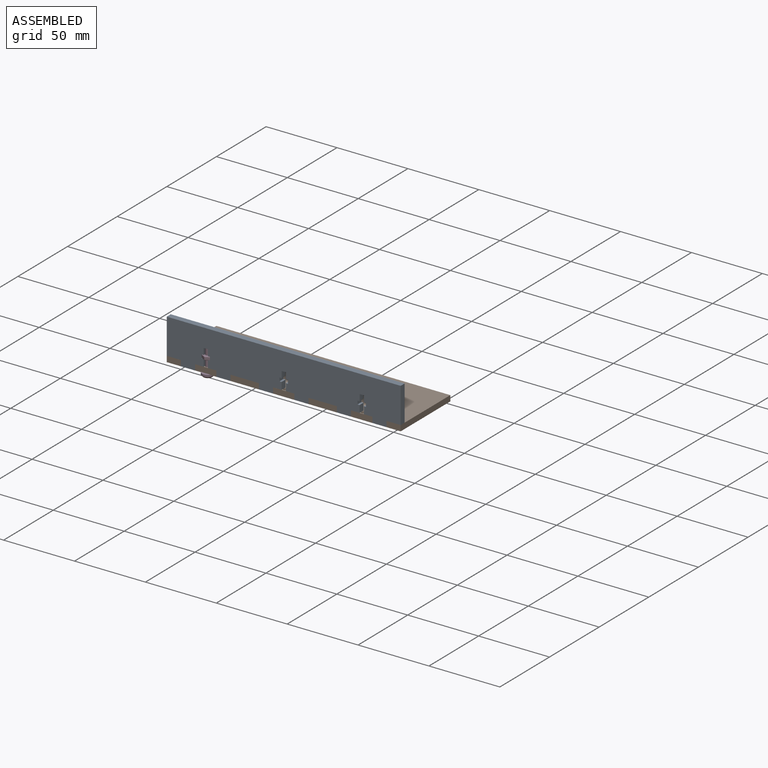
[diagram: assembled view]
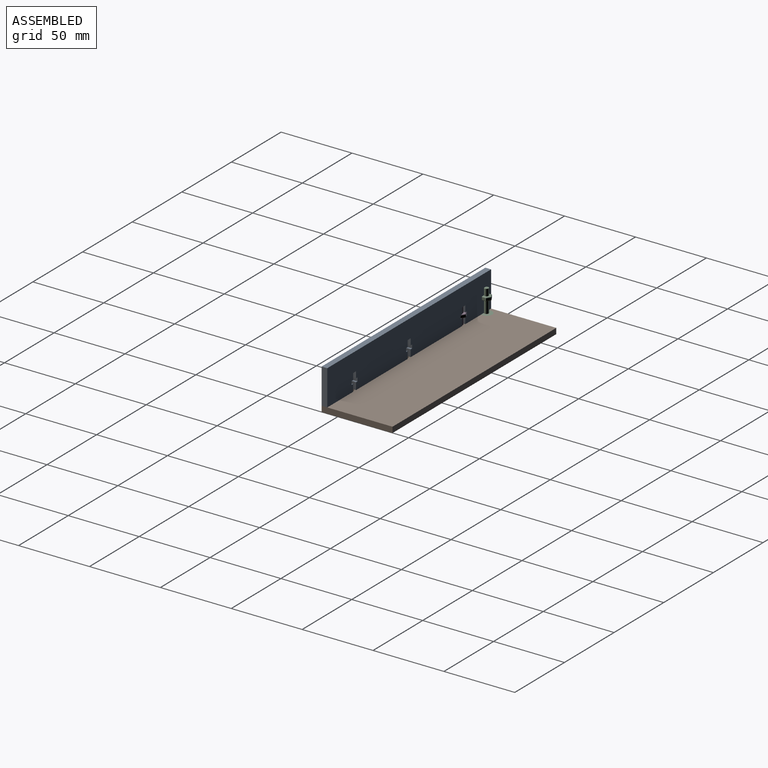
[diagram: assembled view, second angle]
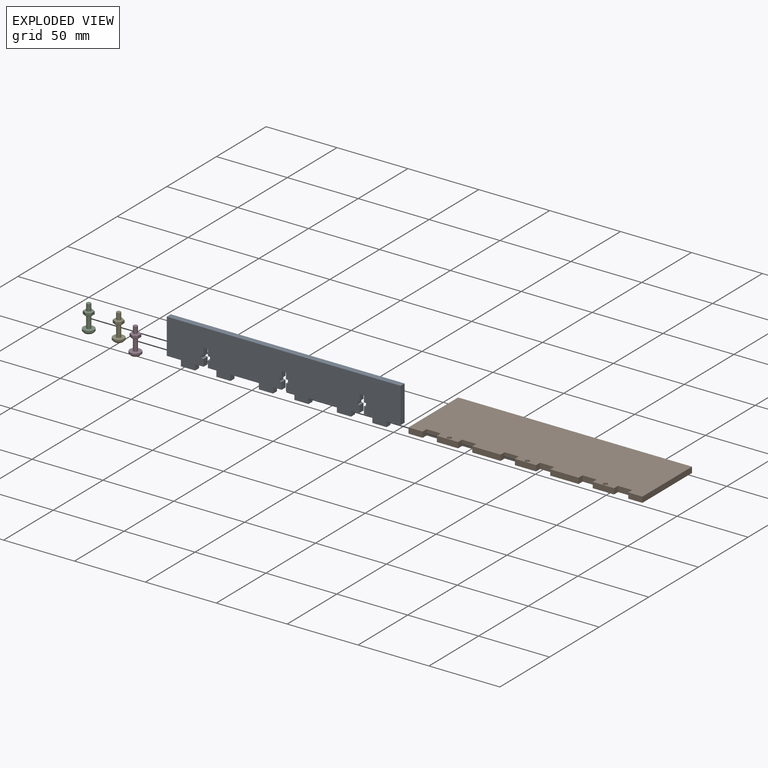
[diagram: exploded view]
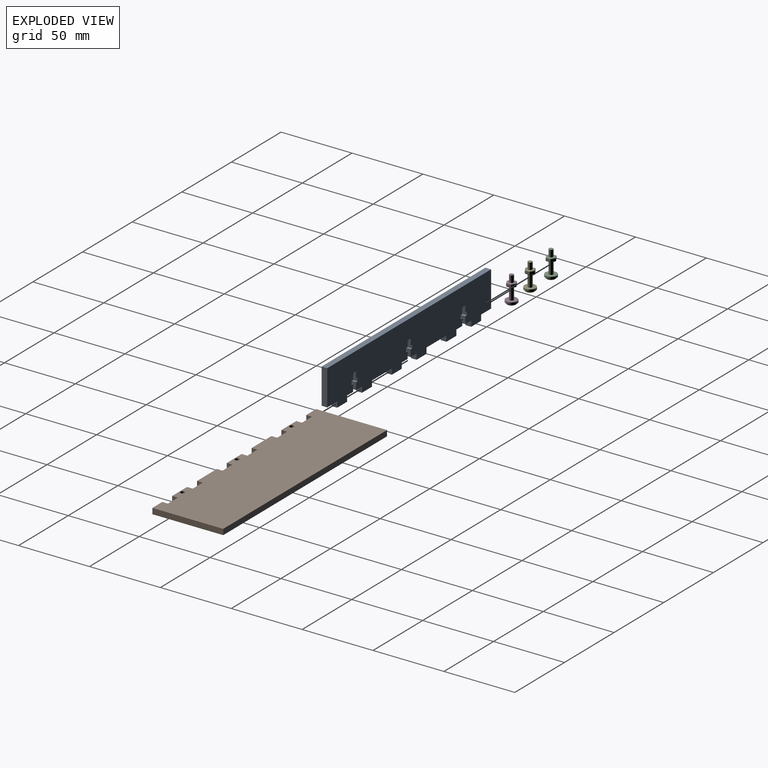
[diagram: exploded view, second angle]
ASSEMBLY  parts=5 mates=3
PART A: 70 faces, bbox 165x4x29 mm
  f0: plane 4.5x4mm, normal (1,0,0), area 18mm2, adj f1,f67,f68,f69
  f1: plane 4x3mm, normal (0,0,-1), area 12mm2, adj f0,f2,f68,f69
  f2: plane 4.5x4mm, normal (-1,0,0), area 18mm2, adj f1,f3,f68,f69
  f3: plane 4x1.5mm, normal (0,0,-1), area 6mm2, adj f2,f4,f68,f69
  f4: plane 4x2.5mm, normal (-1,0,0), area 10mm2, adj f3,f5,f68,f69
  f5: plane 4x1.5mm, normal (0,0,1), area 6mm2, adj f4,f6,f68,f69
  f6: plane 5x4mm, normal (-1,0,0), area 20mm2, adj f5,f7,f68,f69
  f7: plane 6x4mm, normal (0,0,-1), area 24mm2, adj f6,f8,f68,f69
  f8: plane 4x4mm, normal (-1,0,0), area 16mm2, adj f7,f9,f68,f69
  f9: plane 10x4mm, normal (0,0,-1), area 40mm2, adj f8,f10,f68,f69
  f10: plane 4x4mm, normal (1,0,0), area 16mm2, adj f9,f11,f68,f69
  f11: plane 20x4mm, normal (0,0,-1), area 80mm2, adj f10,f12,f68,f69
  f12: plane 4x4mm, normal (-1,0,0), area 16mm2, adj f11,f13,f68,f69
  f13: plane 10x4mm, normal (0,0,-1), area 40mm2, adj f12,f14,f68,f69
  f14: plane 4x4mm, normal (1,0,0), area 16mm2, adj f13,f15,f68,f69
  f15: plane 6x4mm, normal (0,0,-1), area 24mm2, adj f14,f16,f68,f69
  f16: plane 5x4mm, normal (1,0,0), area 20mm2, adj f15,f17,f68,f69
  f17: plane 4x1.5mm, normal (0,0,1), area 6mm2, adj f16,f18,f68,f69
  f18: plane 4x2.5mm, normal (1,0,0), area 10mm2, adj f17,f19,f68,f69
  f19: plane 4x1.5mm, normal (0,0,-1), area 6mm2, adj f18,f20,f68,f69
  f20: plane 4.5x4mm, normal (1,0,0), area 18mm2, adj f19,f21,f68,f69
  f21: plane 4x3mm, normal (0,0,-1), area 12mm2, adj f20,f22,f68,f69
  f22: plane 4.5x4mm, normal (-1,0,0), area 18mm2, adj f21,f23,f68,f69
  f23: plane 4x1.5mm, normal (0,0,-1), area 6mm2, adj f22,f24,f68,f69
  f24: plane 4x2.5mm, normal (-1,0,0), area 10mm2, adj f23,f25,f68,f69
  f25: plane 4x1.5mm, normal (0,0,1), area 6mm2, adj f24,f26,f68,f69
  f26: plane 5x4mm, normal (-1,0,0), area 20mm2, adj f25,f27,f68,f69
  f27: plane 6x4mm, normal (0,0,-1), area 24mm2, adj f26,f28,f68,f69
  f28: plane 4x4mm, normal (-1,0,0), area 16mm2, adj f27,f29,f68,f69
  f29: plane 10x4mm, normal (0,0,-1), area 40mm2, adj f28,f30,f68,f69
  f30: plane 4x4mm, normal (1,0,0), area 16mm2, adj f29,f31,f68,f69
  f31: plane 10x4mm, normal (0,0,-1), area 40mm2, adj f30,f32,f68,f69
  f32: plane 25x4mm, normal (1,0,0), area 100mm2, adj f31,f33,f68,f69
  f33: plane 165x4mm, normal (0,0,1), area 660mm2, adj f32,f34,f68,f69
  f34: plane 25x4mm, normal (-1,0,0), area 100mm2, adj f33,f35,f68,f69
  f35: plane 10x4mm, normal (0,0,-1), area 40mm2, adj f34,f36,f68,f69
  f36: plane 4x4mm, normal (-1,0,0), area 16mm2, adj f35,f37,f68,f69
  f37: plane 10x4mm, normal (0,0,-1), area 40mm2, adj f36,f38,f68,f69
  f38: plane 4x4mm, normal (1,0,0), area 16mm2, adj f37,f39,f68,f69
  f39: plane 6x4mm, normal (0,0,-1), area 24mm2, adj f38,f40,f68,f69
  f40: plane 5x4mm, normal (1,0,0), area 20mm2, adj f39,f41,f68,f69
  f41: plane 4x1.25mm, normal (0,0,1), area 5mm2, adj f40,f42,f68,f69
  f42: cylinder r=0.25mm len=4mm, axis (0,1,0), area 1.6mm2, adj f41,f43,f68,f69
  f43: plane 4x2mm, normal (1,0,0), area 8mm2, adj f42,f44,f68,f69
  f44: cylinder r=0.25mm len=4mm, axis (0,1,0), area 1.6mm2, adj f43,f45,f68,f69
  f45: plane 4x1.25mm, normal (0,0,-1), area 5mm2, adj f44,f46,f68,f69
  f46: plane 4.5x4mm, normal (1,0,0), area 18mm2, adj f45,f47,f68,f69
  f47: plane 4x3mm, normal (0,0,-1), area 12mm2, adj f46,f48,f68,f69
  f48: plane 4.5x4mm, normal (-1,0,0), area 18mm2, adj f47,f49,f68,f69
  f49: plane 4x1.25mm, normal (0,0,-1), area 5mm2, adj f48,f50,f68,f69
  f50: cylinder r=0.25mm len=4mm, axis (0,1,0), area 1.6mm2, adj f49,f51,f68,f69
  f51: plane 4x2mm, normal (-1,0,0), area 8mm2, adj f50,f52,f68,f69
  f52: cylinder r=0.25mm len=4mm, axis (0,1,0), area 1.6mm2, adj f51,f53,f68,f69
  f53: plane 4x1.25mm, normal (0,0,1), area 5mm2, adj f52,f54,f68,f69
  f54: plane 5x4mm, normal (-1,0,0), area 20mm2, adj f53,f55,f68,f69
  f55: plane 6x4mm, normal (0,0,-1), area 24mm2, adj f54,f56,f68,f69
  f56: plane 4x4mm, normal (-1,0,0), area 16mm2, adj f55,f57,f68,f69
  f57: plane 10x4mm, normal (0,0,-1), area 40mm2, adj f56,f58,f68,f69
  f58: plane 4x4mm, normal (1,0,0), area 16mm2, adj f57,f59,f68,f69
  f59: plane 20x4mm, normal (0,0,-1), area 80mm2, adj f58,f60,f68,f69
  f60: plane 4x4mm, normal (-1,0,0), area 16mm2, adj f59,f61,f68,f69
  f61: plane 10x4mm, normal (0,0,-1), area 40mm2, adj f60,f62,f68,f69
  f62: plane 4x4mm, normal (1,0,0), area 16mm2, adj f61,f63,f68,f69
  f63: plane 6x4mm, normal (0,0,-1), area 24mm2, adj f62,f64,f68,f69
  f64: plane 5x4mm, normal (1,0,0), area 20mm2, adj f63,f65,f68,f69
  f65: plane 4x1.5mm, normal (0,0,1), area 6mm2, adj f64,f66,f68,f69
  f66: plane 4x2.5mm, normal (1,0,0), area 10mm2, adj f65,f67,f68,f69
  f67: plane 4x1.5mm, normal (0,0,-1), area 6mm2, adj f0,f66,f68,f69
  f68: plane 165x29mm, normal (0,-1,0), area 4234.6mm2, adj f0,f1,f2,f3,f4,f5,f6,f7
  f69: plane 165x29mm, normal (0,1,0), area 4234.6mm2, adj f0,f1,f2,f3,f4,f5,f6,f7
PART B: 33 faces, bbox 165x50x4 mm
  f0: plane 20x4mm, normal (0,-1,0), area 80mm2, adj f6,f14,f25,f29
  f1: plane 15x4mm, normal (0,-1,0), area 60mm2, adj f6,f14,f28,f31
  f2: plane 10x4mm, normal (0,-1,0), area 40mm2, adj f6,f12,f14,f32
  f3: plane 15x4mm, normal (0,-1,0), area 60mm2, adj f6,f14,f16,f20
  f4: plane 20x4mm, normal (0,-1,0), area 80mm2, adj f6,f14,f19,f23
  f5: plane 15x4mm, normal (0,-1,0), area 60mm2, adj f6,f14,f22,f26
  f6: plane 165x50mm, normal (0,0,-1), area 7988.8mm2, adj f0,f1,f2,f3,f4,f5,f7,f8
  f7: plane 10x4mm, normal (0,-1,0), area 40mm2, adj f6,f8,f14,f17
  f8: plane 50x4mm, normal (-1,0,0), area 200mm2, adj f6,f7,f9,f14
  f9: plane 165x4mm, normal (0,1,0), area 660mm2, adj f6,f8,f12,f14
  f10: cylinder r=1.5mm len=4mm, axis (0,0,1), area 37.7mm2, adj f6,f14
  f11: cylinder r=1.5mm len=4mm, axis (0,0,1), area 37.7mm2, adj f6,f14
  f12: plane 50x4mm, normal (1,0,0), area 200mm2, adj f2,f6,f9,f14
  f13: cylinder r=1.5mm len=4mm, axis (0,0,1), area 37.7mm2, adj f6,f14
  f14: plane 165x50mm, normal (0,0,1), area 7988.8mm2, adj f0,f1,f2,f3,f4,f5,f7,f8
  f15: plane 10x4mm, normal (0,-1,0), area 40mm2, adj f6,f14,f16,f17
  f16: plane 4x4mm, normal (-1,0,0), area 16mm2, adj f3,f6,f14,f15
  f17: plane 4x4mm, normal (1,0,0), area 16mm2, adj f6,f7,f14,f15
  f18: plane 10x4mm, normal (0,-1,0), area 40mm2, adj f6,f14,f19,f20
  f19: plane 4x4mm, normal (-1,0,0), area 16mm2, adj f4,f6,f14,f18
  f20: plane 4x4mm, normal (1,0,0), area 16mm2, adj f3,f6,f14,f18
  f21: plane 10x4mm, normal (0,-1,0), area 40mm2, adj f6,f14,f22,f23
  f22: plane 4x4mm, normal (-1,0,0), area 16mm2, adj f5,f6,f14,f21
  f23: plane 4x4mm, normal (1,0,0), area 16mm2, adj f4,f6,f14,f21
  f24: plane 10x4mm, normal (0,-1,0), area 40mm2, adj f6,f14,f25,f26
  f25: plane 4x4mm, normal (-1,0,0), area 16mm2, adj f0,f6,f14,f24
  f26: plane 4x4mm, normal (1,0,0), area 16mm2, adj f5,f6,f14,f24
  f27: plane 10x4mm, normal (0,-1,0), area 40mm2, adj f6,f14,f28,f29
  f28: plane 4x4mm, normal (-1,0,0), area 16mm2, adj f1,f6,f14,f27
  f29: plane 4x4mm, normal (1,0,0), area 16mm2, adj f0,f6,f14,f27
  f30: plane 10x4mm, normal (0,-1,0), area 40mm2, adj f6,f14,f31,f32
  f31: plane 4x4mm, normal (1,0,0), area 16mm2, adj f1,f6,f14,f30
  f32: plane 4x4mm, normal (-1,0,0), area 16mm2, adj f2,f6,f14,f30
PART C: 27 faces, bbox 8x8x18.5 mm
  f0: cylinder r=1.5mm len=8.75mm, axis (0,0,1), area 82.5mm2, adj f4,f12
  f1: plane 5.88x5.88mm, normal (0,0,-1), area 27.1mm2, adj f2
  f2: cone r=4mm half-angle=45deg, axis (0,0,1), area 32.7mm2, adj f1,f3
  f3: cylinder r=4mm len=8mm, axis (0,0,1), area 36.2mm2, adj f2,f4
  f4: plane 8x8mm, normal (0,0,1), area 43.2mm2, adj f0,f3
  f5: plane 3x1.73mm, normal (0.5,0.87,0), area 5.2mm2, adj f6,f10,f16,f22
  f6: plane 3x1.73mm, normal (-0.5,0.87,0), area 5.2mm2, adj f5,f7,f15,f21
  f7: plane 3.46x1.5mm, normal (-1,0,0), area 5.2mm2, adj f6,f8,f17,f23
  f8: plane 3x1.73mm, normal (-0.5,-0.87,0), area 5.2mm2, adj f7,f9,f19,f25
  f9: plane 3x1.73mm, normal (0.5,-0.87,0), area 5.2mm2, adj f8,f10,f20,f26
  f10: plane 3.46x1.5mm, normal (1,0,0), area 5.2mm2, adj f5,f9,f18,f24
  f11: plane 5.77x5mm, normal (0,0,1), area 14.6mm2, adj f14,f21,f22,f23,f24,f25,f26
  f12: plane 5.77x5mm, normal (0,0,-1), area 14.6mm2, adj f0,f15,f16,f17,f18,f19,f20
  f13: plane 3x3mm, normal (0,0,1), area 7.1mm2, adj f14
  f14: cylinder r=1.5mm len=4.75mm, axis (0,0,1), area 44.8mm2, adj f11,f13
  f15: cylinder r=0.5mm len=3.25mm, axis (-0.87,-0.5,0), area 2.6mm2, adj f6,f12,f16,f17
  f16: cylinder r=0.5mm len=3.25mm, axis (-0.87,0.5,0), area 2.6mm2, adj f5,f12,f15,f18
  f17: cylinder r=0.5mm len=3.46mm, axis (0,-1,0), area 2.6mm2, adj f7,f12,f15,f19
  f18: cylinder r=0.5mm len=3.46mm, axis (0,1,0), area 2.6mm2, adj f10,f12,f16,f20
  f19: cylinder r=0.5mm len=3.25mm, axis (0.87,-0.5,0), area 2.6mm2, adj f8,f12,f17,f20
  f20: cylinder r=0.5mm len=3.25mm, axis (0.87,0.5,0), area 2.6mm2, adj f9,f12,f18,f19
  f21: cylinder r=0.5mm len=3.25mm, axis (0.87,0.5,0), area 2.6mm2, adj f6,f11,f22,f23
  f22: cylinder r=0.5mm len=3.25mm, axis (0.87,-0.5,0), area 2.6mm2, adj f5,f11,f21,f24
  f23: cylinder r=0.5mm len=3.46mm, axis (0,1,0), area 2.6mm2, adj f7,f11,f21,f25
  f24: cylinder r=0.5mm len=3.46mm, axis (0,-1,0), area 2.6mm2, adj f10,f11,f22,f26
  f25: cylinder r=0.5mm len=3.25mm, axis (-0.87,0.5,0), area 2.6mm2, adj f8,f11,f23,f26
  f26: cylinder r=0.5mm len=3.25mm, axis (-0.87,-0.5,0), area 2.6mm2, adj f9,f11,f24,f25
PART D: same geometry as C
PART E: same geometry as C
PLACE A t=(-3.82,-1.23,0)mm
PLACE B t=(-3.82,-1.23,0)mm
PLACE C at identity
PLACE D t=(21.18,-3.23,-3.75)mm
PLACE E at identity
MATE fastened B.f16 <-> A.f38  axis (-1,0,0) through (13.68,-3.23,-2)mm
MATE fastened D.f10 <-> A.f51  axis (1,0,0) through (24.18,-3.23,6.25)mm
MATE cylindrical B.f13 <-> D.f2  axis (0,0,-1) through (21.18,-3.23,-4)mm
